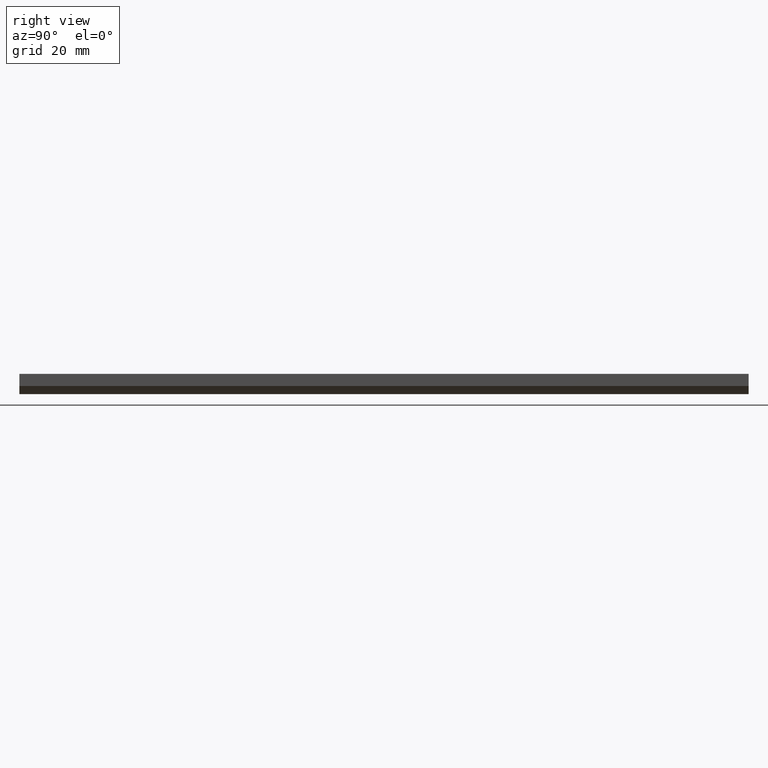
[diagram: clean part render]
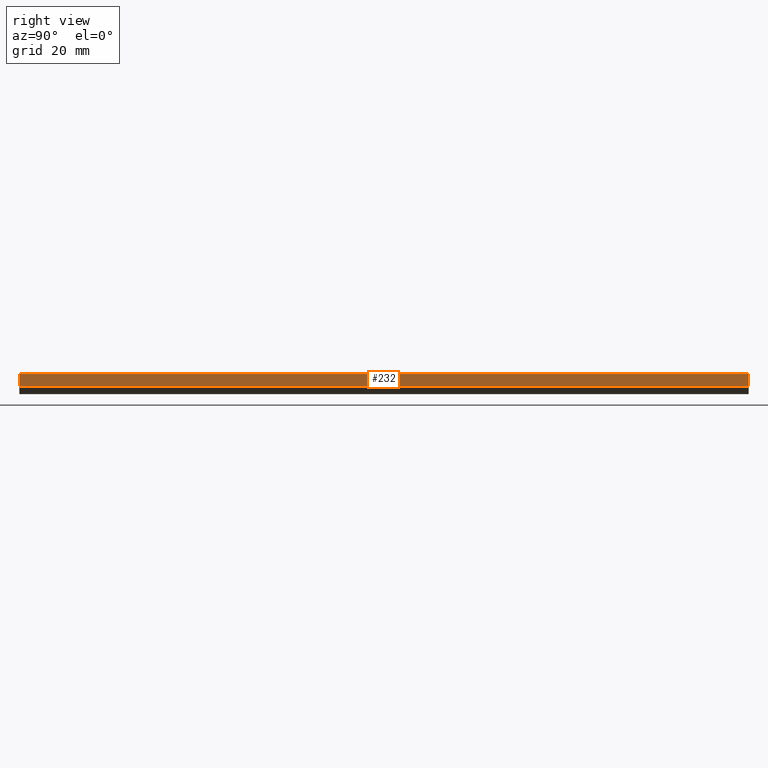
[diagram: same view with one face highlighted and labeled with its STEP entity id]
A machine part, right view. The second image highlights one B-rep face of the part: STEP entity #232.
In plain terms, the highlighted planar face has unit normal (-1, 0, -0).
Its self-contained STEP definition (entity closure, byte-faithful):
#41=FACE_OUTER_BOUND('',#53,.T.);
#53=EDGE_LOOP('',(#159,#160,#161,#162));
#77=LINE('',#330,#95);
#78=LINE('',#332,#96);
#79=LINE('',#334,#97);
#80=LINE('',#335,#98);
#95=VECTOR('',#270,3.);
#96=VECTOR('',#271,180.);
#97=VECTOR('',#272,3.);
#98=VECTOR('',#273,180.);
#113=VERTEX_POINT('',#328);
#114=VERTEX_POINT('',#329);
#115=VERTEX_POINT('',#331);
#116=VERTEX_POINT('',#333);
#133=EDGE_CURVE('',#113,#114,#77,.T.);
#134=EDGE_CURVE('',#114,#115,#78,.T.);
#135=EDGE_CURVE('',#116,#115,#79,.T.);
#136=EDGE_CURVE('',#116,#113,#80,.T.);
#159=ORIENTED_EDGE('',*,*,#133,.T.);
#160=ORIENTED_EDGE('',*,*,#134,.T.);
#161=ORIENTED_EDGE('',*,*,#135,.F.);
#162=ORIENTED_EDGE('',*,*,#136,.T.);
#211=PLANE('',#246);
#232=ADVANCED_FACE('',(#41),#211,.F.);
#246=AXIS2_PLACEMENT_3D('',#327,#268,#269);
#268=DIRECTION('center_axis',(-1.,0.,-1.7347234759768E-16));
#269=DIRECTION('ref_axis',(0.,0.,1.));
#270=DIRECTION('',(1.7347234759768E-16,0.,-1.));
#271=DIRECTION('',(0.,1.,0.));
#272=DIRECTION('',(1.7347234759768E-16,0.,-1.));
#273=DIRECTION('',(0.,-1.,0.));
#327=CARTESIAN_POINT('Origin',(6.5,180.,2.5));
#328=CARTESIAN_POINT('',(6.5,0.,2.5));
#329=CARTESIAN_POINT('',(6.5,0.,-0.5));
#330=CARTESIAN_POINT('',(6.5,0.,2.5));
#331=CARTESIAN_POINT('',(6.5,180.,-0.5));
#332=CARTESIAN_POINT('',(6.5,180.,-0.5));
#333=CARTESIAN_POINT('',(6.5,180.,2.5));
#334=CARTESIAN_POINT('',(6.5,180.,2.5));
#335=CARTESIAN_POINT('',(6.5,180.,2.5));